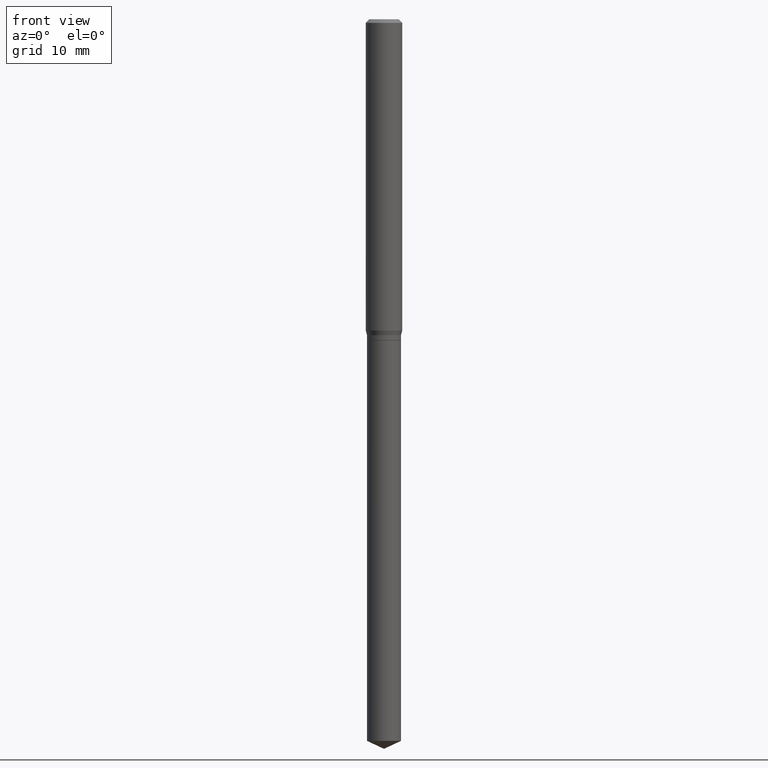
[diagram: clean part render]
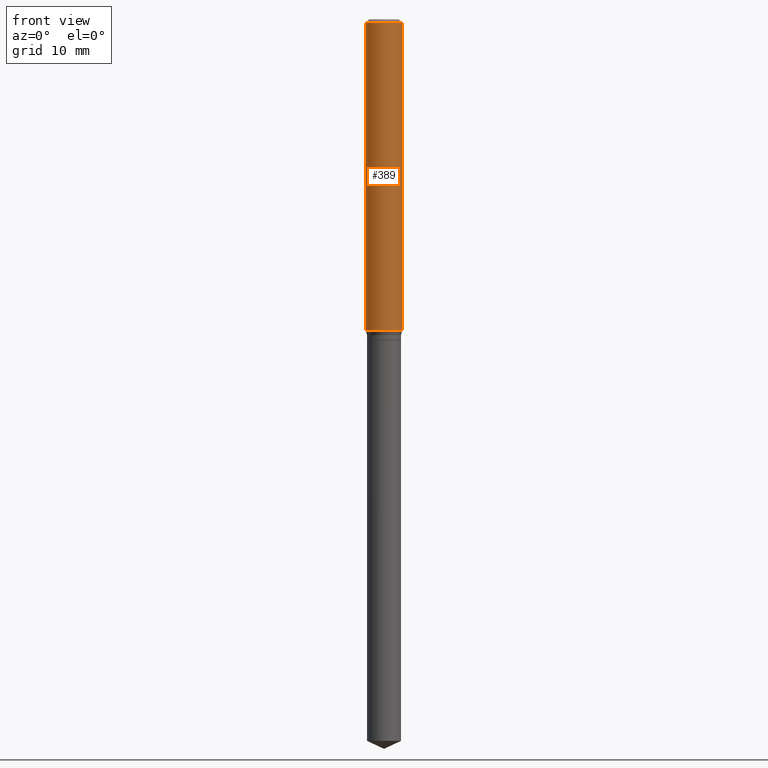
[diagram: same view with one face highlighted and labeled with its STEP entity id]
A machine part, front view. The second image highlights one B-rep face of the part: STEP entity #389.
In plain terms, the highlighted cylindrical surface (edge-blend (fillet) strip) has radius 1.4999 mm, axis along (-0, 0, 1).
Its self-contained STEP definition (entity closure, byte-faithful):
#5 = CARTESIAN_POINT ( 'NONE',  ( 0.05905000000000011628, -3.931611887638806444E-15, -1.007958399310102893 ) ) ;
#7 = DIRECTION ( 'NONE',  ( -2.445468806185136597E-29, 3.491481338843145583E-15, 1.000000000000000000 ) ) ;
#20 = LINE ( 'NONE', #463, #199 ) ;
#27 = EDGE_CURVE ( 'NONE', #489, #115, #340, .T. ) ;
#50 = FACE_OUTER_BOUND ( 'NONE', #345, .T. ) ;
#74 = DIRECTION ( 'NONE',  ( -2.445468806185136877E-29, 3.491481338843145188E-15, 1.000000000000000000 ) ) ;
#93 = DIRECTION ( 'NONE',  ( -2.445468806185136597E-29, 3.491481338843145583E-15, 1.000000000000000000 ) ) ;
#115 = VERTEX_POINT ( 'NONE', #204 ) ;
#121 = AXIS2_PLACEMENT_3D ( 'NONE', #428, #461, #137 ) ;
#122 = AXIS2_PLACEMENT_3D ( 'NONE', #397, #93, #172 ) ;
#126 = CARTESIAN_POINT ( 'NONE',  ( -0.05904999999999999832, -1.360675682600244344E-15, -0.01181000000000007044 ) ) ;
#137 = DIRECTION ( 'NONE',  ( 1.000000000000000000, -6.982962677686266711E-15, 0.000000000000000000 ) ) ;
#144 = ORIENTED_EDGE ( 'NONE', *, *, #413, .T. ) ;
#171 = ORIENTED_EDGE ( 'NONE', *, *, #375, .T. ) ;
#172 = DIRECTION ( 'NONE',  ( 1.000000000000000000, -6.982962677686266711E-15, 0.000000000000000000 ) ) ;
#177 = LINE ( 'NONE', #477, #423 ) ;
#198 = ORIENTED_EDGE ( 'NONE', *, *, #429, .F. ) ;
#199 = VECTOR ( 'NONE', #74, 39.37007874015748143 ) ;
#204 = CARTESIAN_POINT ( 'NONE',  ( 0.05904999999999999832, -4.535783407291118600E-16, -0.01181000000000007044 ) ) ;
#209 = CARTESIAN_POINT ( 'NONE',  ( 0.000000000000000000, 0.000000000000000000, 0.000000000000000000 ) ) ;
#218 = CARTESIAN_POINT ( 'NONE',  ( -0.05905000000000011628, -3.099692456055091636E-15, -1.007958399310102893 ) ) ;
#305 = AXIS2_PLACEMENT_3D ( 'NONE', #209, #7, #319 ) ;
#309 = VERTEX_POINT ( 'NONE', #218 ) ;
#319 = DIRECTION ( 'NONE',  ( 1.000000000000000000, -6.982962677686266711E-15, 4.876176775795935793E-29 ) ) ;
#340 = CIRCLE ( 'NONE', #121, 0.05904999999999999832 ) ;
#345 = EDGE_LOOP ( 'NONE', ( #198, #171, #144, #434 ) ) ;
#350 = VERTEX_POINT ( 'NONE', #5 ) ;
#371 = DIRECTION ( 'NONE',  ( -2.445468806185136877E-29, 3.491481338843145188E-15, 1.000000000000000000 ) ) ;
#375 = EDGE_CURVE ( 'NONE', #309, #350, #417, .T. ) ;
#389 = ADVANCED_FACE ( 'NONE', ( #50 ), #392, .T. ) ;
#392 = CYLINDRICAL_SURFACE ( 'NONE', #305, 0.05905000000000006077 ) ;
#397 = CARTESIAN_POINT ( 'NONE',  ( 2.464930823445158340E-29, -3.519267941521431524E-15, -1.007958399310102893 ) ) ;
#413 = EDGE_CURVE ( 'NONE', #350, #115, #177, .T. ) ;
#417 = CIRCLE ( 'NONE', #122, 0.05905000000000011628 ) ;
#423 = VECTOR ( 'NONE', #371, 39.37007874015748143 ) ;
#428 = CARTESIAN_POINT ( 'NONE',  ( 2.888098660104663766E-31, -4.123439461173779647E-17, -0.01181000000000007044 ) ) ;
#429 = EDGE_CURVE ( 'NONE', #309, #489, #20, .T. ) ;
#434 = ORIENTED_EDGE ( 'NONE', *, *, #27, .F. ) ;
#461 = DIRECTION ( 'NONE',  ( -2.445468806185136597E-29, 3.491481338843145583E-15, 1.000000000000000000 ) ) ;
#463 = CARTESIAN_POINT ( 'NONE',  ( -0.05905000000000006077, 4.195754854663395916E-16, -2.904631170795524694E-30 ) ) ;
#477 = CARTESIAN_POINT ( 'NONE',  ( 0.05905000000000006077, -4.123439461173744764E-16, 2.879382386107503023E-30 ) ) ;
#489 = VERTEX_POINT ( 'NONE', #126 ) ;